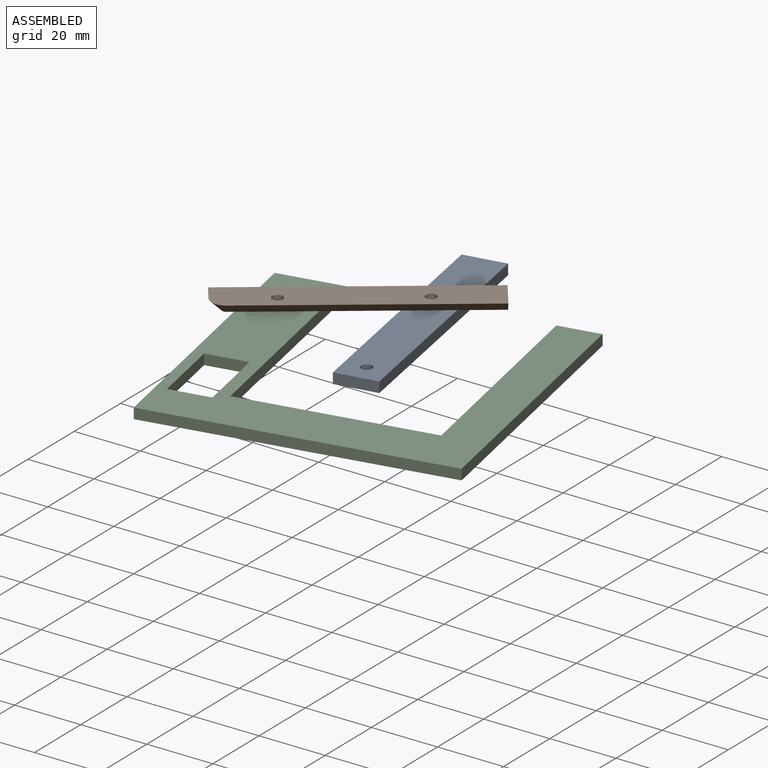
[diagram: assembled view]
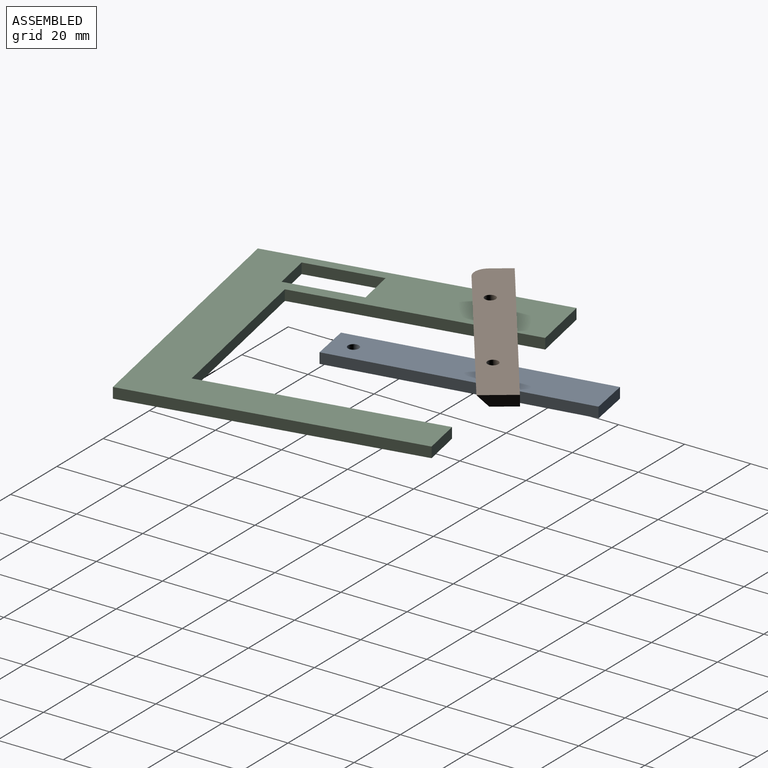
[diagram: assembled view, second angle]
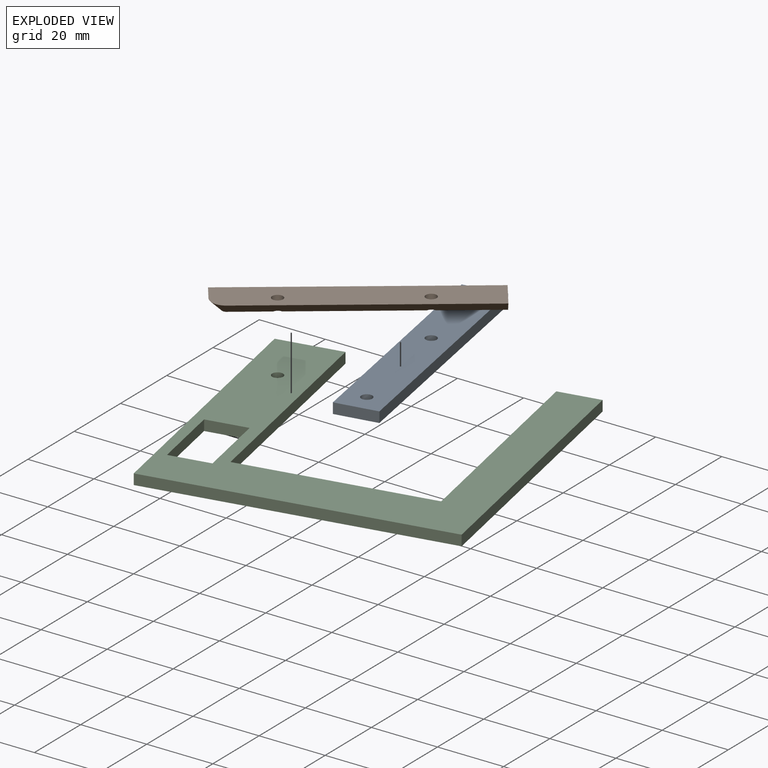
[diagram: exploded view]
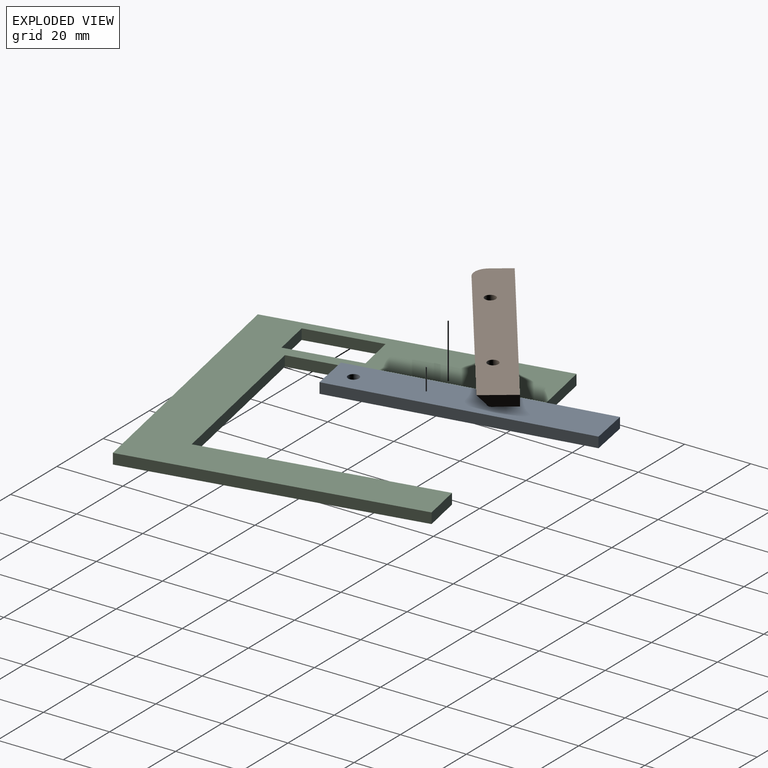
[diagram: exploded view, second angle]
ASSEMBLY  parts=3 mates=2
PART A: 8 faces, bbox 12.7x76.2x3.2 mm
  f0: plane 12.7x3.18mm, normal (0,1,0), area 40.3mm2, adj f1,f5,f6,f7
  f1: plane 76.2x3.18mm, normal (-1,0,0), area 241.9mm2, adj f0,f2,f6,f7
  f2: plane 12.7x3.18mm, normal (0,-1,0), area 40.3mm2, adj f1,f5,f6,f7
  f3: cylinder r=1.65mm len=3.3mm, axis (0,0,-1), area 32.9mm2, adj f6,f7
  f4: cylinder r=1.65mm len=3.3mm, axis (0,0,-1), area 32.9mm2, adj f6,f7
  f5: plane 76.2x3.18mm, normal (1,0,0), area 241.9mm2, adj f0,f2,f6,f7
  f6: plane 76.2x12.7mm, normal (0,0,1), area 950.6mm2, adj f0,f1,f2,f3,f4,f5
  f7: plane 76.2x12.7mm, normal (0,0,-1), area 950.6mm2, adj f0,f1,f2,f3,f4,f5
PART B: 9 faces, bbox 10.8x74.3x3.2 mm
  f0: plane 74.3x3.18mm, normal (1,0,0), area 230.8mm2, adj f1,f4,f5,f8
  f1: plane 10.8x3.18mm, normal (0,1,0), area 29.2mm2, adj f0,f4,f5,f6
  f2: cylinder r=1.65mm len=3.3mm, axis (0,0,-1), area 32.4mm2, adj f4,f5,f6
  f3: cylinder r=1.65mm len=3.3mm, axis (0,0,-1), area 32.4mm2, adj f4,f5,f6
  f4: plane 71.12x7.62mm, normal (0,0,1), area 525.6mm2, adj f0,f1,f2,f3,f6,f7,f8
  f5: plane 74.3x10.8mm, normal (0,0,-1), area 780.6mm2, adj f0,f1,f2,f3,f6,f7,f8
  f6: plane 69.85x3.18mm, normal (-0.71,0,0.71), area 312.1mm2, adj f1,f2,f3,f4,f5,f7
  f7: cone r=1.27mm half-angle=45deg, axis (0,0,-1), area 20.2mm2, adj f4,f5,f6,f8
  f8: plane 6.35x3.18mm, normal (0,-0.71,0.71), area 28.5mm2, adj f0,f4,f5,f7
PART C: 15 faces, bbox 88.9x86.4x3.2 mm
  f0: plane 22.76x3.18mm, normal (1,0,0), area 72.3mm2, adj f1,f12,f13,f14
  f1: plane 12.34x3.18mm, normal (0,-1,0), area 39.2mm2, adj f0,f2,f13,f14
  f2: plane 22.76x3.18mm, normal (-1,0,0), area 72.3mm2, adj f1,f12,f13,f14
  f3: plane 70.57x3.18mm, normal (-1,0,0), area 224.1mm2, adj f4,f10,f13,f14
  f4: plane 57.15x3.18mm, normal (0,1,0), area 181.5mm2, adj f3,f5,f13,f14
  f5: plane 70.57x3.18mm, normal (1,0,0), area 224.1mm2, adj f4,f6,f13,f14
  f6: plane 19.22x3.18mm, normal (0,1,0), area 61mm2, adj f5,f7,f13,f14
  f7: plane 86.41x3.18mm, normal (-1,0,0), area 274.4mm2, adj f6,f8,f13,f14
  f8: plane 88.9x3.18mm, normal (0,-1,0), area 282.3mm2, adj f7,f9,f13,f14
  f9: plane 86.41x3.18mm, normal (1,0,0), area 274.4mm2, adj f8,f10,f13,f14
  f10: plane 12.53x3.18mm, normal (0,1,0), area 39.8mm2, adj f3,f9,f13,f14
  f11: cylinder r=1.65mm len=3.3mm, axis (0,0,-1), area 32.9mm2, adj f13,f14
  f12: plane 12.34x3.18mm, normal (0,1,0), area 39.2mm2, adj f0,f2,f13,f14
  f13: plane 88.9x86.41mm, normal (0,0,1), area 3359.2mm2, adj f0,f1,f2,f3,f4,f5,f6,f7
  f14: plane 88.9x86.41mm, normal (0,0,-1), area 3359.2mm2, adj f0,f1,f2,f3,f4,f5,f6,f7
PLACE A rot(axis=(0,0,1),10.2deg) t=(80.2,0.17,16.48)mm
PLACE B rot(axis=(-0.45,-0.89,0),180deg) t=(36.06,6.31,22.83)mm
PLACE C rot(axis=(0,0,1),11.1deg) t=(51.58,-45.04,16.48)mm fixed
MATE revolute B.f2 <-> C.f11  axis (0,0,-1) through (47.74,22.64,19.65)mm
MATE revolute B.f3 <-> A.f4  axis (0,0,-1) through (78.56,45.04,19.65)mm
